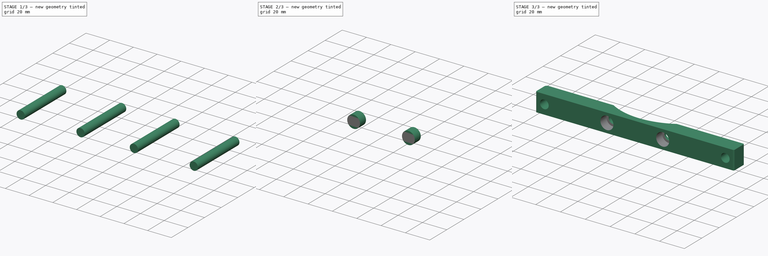
[diagram: build sequence overview — one tinted view per stage of 3, left to right]
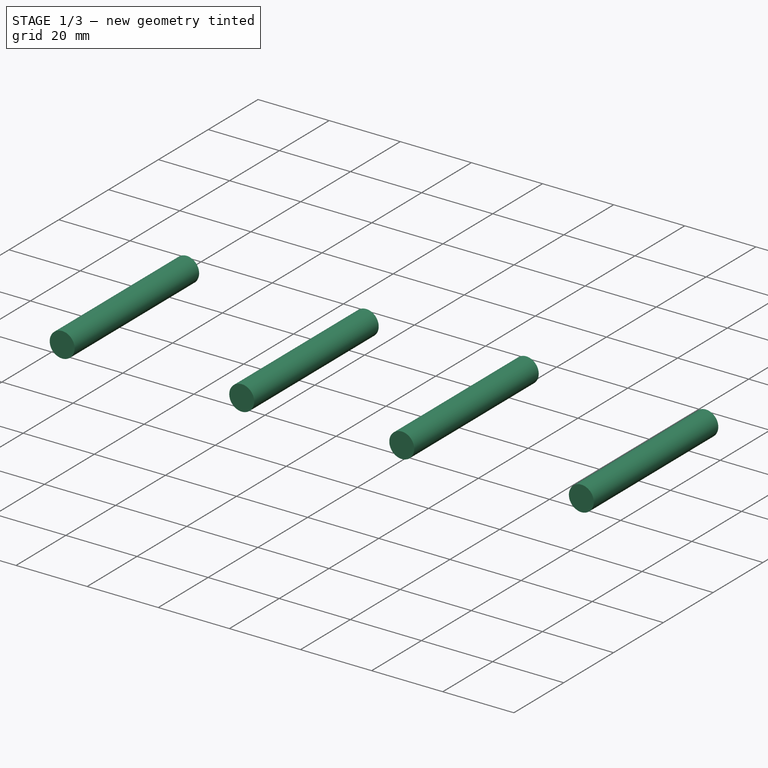
[diagram: stage 1 of 3 — iso view after this stage's code; geometry added in this stage tinted green]
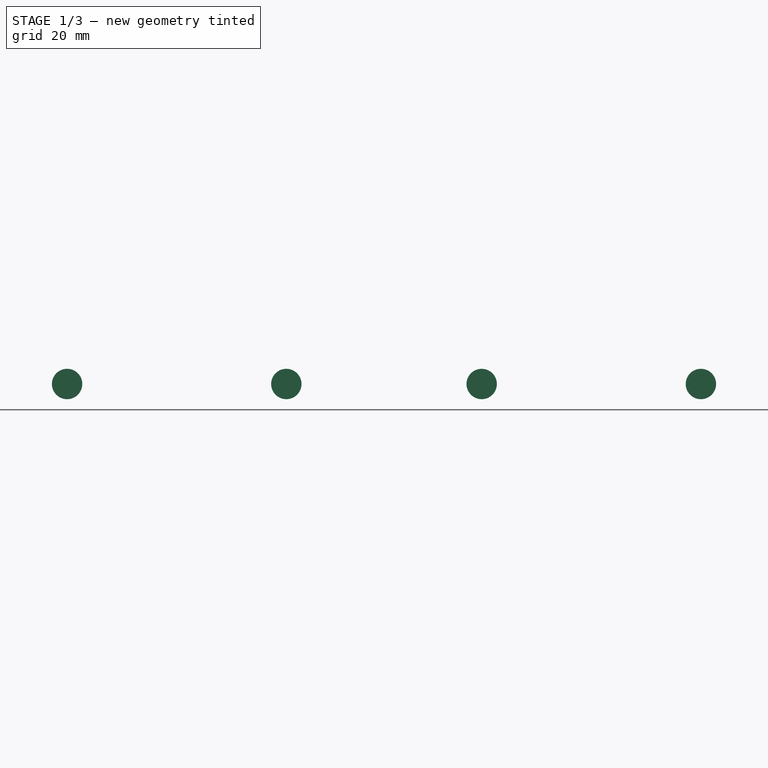
[diagram: stage 1 of 3 — front view after this stage's code; geometry added in this stage tinted green]
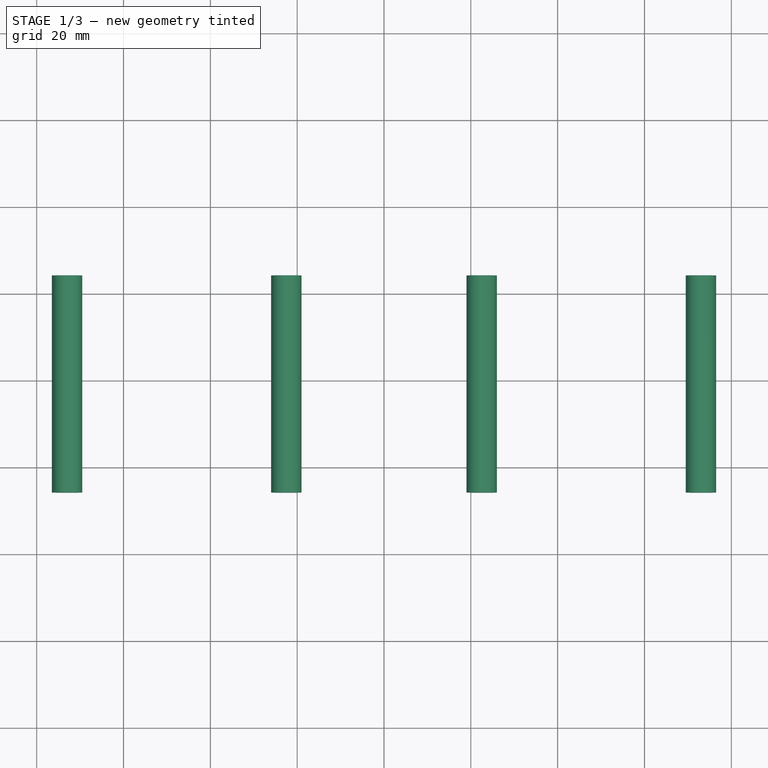
[diagram: stage 1 of 3 — top view after this stage's code; geometry added in this stage tinted green]
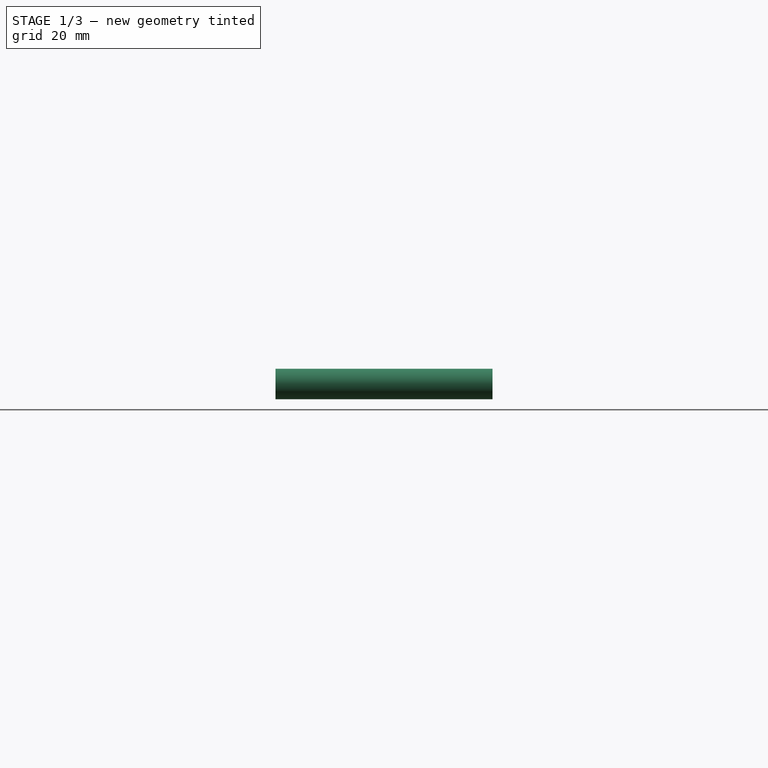
[diagram: stage 1 of 3 — right view after this stage's code; geometry added in this stage tinted green]
FCSTD DOCUMENT  (FreeCAD 0.21RUnknown)
Label: License Plate Holder
License: All rights reserved
LicenseURL: http://en.wikipedia.org/wiki/All_rights_reserved
objects: Sketcher::SketchObject×5, Part::Extrusion×3, Part::Cut×2, Image::ImagePlane×2, Part::Fillet×1
note: 11 computed .brp shape members not serialized (recipe doc carries the construction recipe); baked Part::Feature solids carry a one-line shape summary decoded from their .brp

FEATURE [Sketcher::SketchObject] Sketch003
  FullyConstrained = false
  sketch-geometry (9):
    g0: LineSegment StartX=-80 StartY=26.2201 StartZ=0 EndX=-25.5147 EndY=26.2201 EndZ=0
    g1: LineSegment StartX=80 StartY=26.2201 StartZ=0 EndX=80 EndY=14.2201 EndZ=0
    g2: LineSegment StartX=80 StartY=14.2201 StartZ=0 EndX=-80 EndY=14.2201 EndZ=0
    g3: LineSegment StartX=-80 StartY=14.2201 StartZ=0 EndX=-80 EndY=26.2201 EndZ=0
    g4: ArcOfCircle CenterX=0 CenterY=69.2201 CenterZ=0 NormalX=0 NormalY=0 NormalZ=1 AngleXU=0 Radius=50 StartAngle=4.17686 EndAngle=5.24792
    g5: LineSegment StartX=25.5147 StartY=26.2201 StartZ=0 EndX=80 EndY=26.2201 EndZ=0
    g6: LineSegment StartX=2.32574e-08 StartY=19.2201 StartZ=0 EndX=2.32574e-08 EndY=14.2201 EndZ=0
    g7: LineSegment StartX=2.32574e-08 StartY=19.2201 StartZ=0 EndX=-25.5147 EndY=19.2201 EndZ=0
    g8: LineSegment StartX=-25.5147 StartY=19.2201 StartZ=0 EndX=-25.5147 EndY=26.2201 EndZ=0
  constraints (26):
    c: Coincident(g5,g1)
    c: Coincident(g1,g2)
    c: Coincident(g2,g3)
    c: Coincident(g3,g0)
    c: Horizontal(g0)
    c: Horizontal(g2)
    c: Vertical(g1)
    c: Vertical(g3)
    c: PointOnObject(g4,g-2)
    c: Diameter(g4) = 100
    c: Coincident(g0,g4)
    c: Coincident(g5,g4)
    c: Horizontal(g5)
    c: Equal(g5,g0)
    c: Equal(g1,g3)
    c: PointOnObject(g6,g4)
    c: PointOnObject(g6,g2)
    c: Vertical(g6)
    c: Distance(g6) = 5
    c: Distance(g2) = 160
    c: Coincident(g6,g7)
    c: Horizontal(g7)
    c: Coincident(g7,g8)
    c: Coincident(g8,g0)
    c: Vertical(g8)
    c: Distance(g8) = 7
FEATURE [Part::Extrusion] Extrude003
  Base = -> Sketch003
  Dir = (0,0,1)
  DirMode = 2
  FaceMakerClass = Part::FaceMakerBullseye
  LengthFwd = 15
  LengthRev = 0
  Solid = true
  Symmetric = false
FEATURE [Sketcher::SketchObject] Sketch004
  ExternalGeometry = -> [Extrude003]
  FullyConstrained = true
  MapMode = 5
  Placement = pos=(0,14.2201,0) rot=(1,0,0;1.5708rad)
  Support = -> [Extrude003]
  sketch-geometry (13):
    g0: Circle CenterX=-73 CenterY=7.5 CenterZ=0 NormalX=0 NormalY=0 NormalZ=1 AngleXU=0 Radius=3.5
    g1: Circle CenterX=73 CenterY=7.5 CenterZ=0 NormalX=0 NormalY=0 NormalZ=1 AngleXU=0 Radius=3.5
    g2: LineSegment StartX=80 StartY=7.5 StartZ=0 EndX=-80 EndY=7.5 EndZ=0
    g3: LineSegment StartX=73 StartY=7.5 StartZ=0 EndX=0 EndY=0 EndZ=0
    g4: LineSegment StartX=0 StartY=0 StartZ=0 EndX=-73 EndY=7.5 EndZ=0
    g5: LineSegment StartX=-73 StartY=15 StartZ=0 EndX=-73 EndY=7.5 EndZ=0
    g6: LineSegment StartX=-73 StartY=7.5 StartZ=0 EndX=-73 EndY=0 EndZ=0
    g7: LineSegment StartX=-73 StartY=7.5 StartZ=0 EndX=73 EndY=7.5 EndZ=0
    g8: Circle CenterX=-22.5 CenterY=7.5 CenterZ=0 NormalX=0 NormalY=0 NormalZ=1 AngleXU=0 Radius=3.5
    g9: Circle CenterX=22.5 CenterY=7.5 CenterZ=0 NormalX=0 NormalY=0 NormalZ=1 AngleXU=0 Radius=3.5
    g10: LineSegment StartX=-22.5 StartY=7.5 StartZ=0 EndX=22.5 EndY=7.5 EndZ=0
    g11: LineSegment StartX=-22.5 StartY=7.5 StartZ=0 EndX=0 EndY=0 EndZ=0
    g12: LineSegment StartX=22.5 StartY=7.5 StartZ=0 EndX=0 EndY=0 EndZ=0
  constraints (34):
    c: Diameter(g1) = 7
    c: Equal(g1,g0)
    c: PointOnObject(g2,g-4)
    c: PointOnObject(g2,g-3)
    c: Horizontal(g2)
    c: PointOnObject(g0,g2)
    c: PointOnObject(g1,g2)
    c: Coincident(g3,g1)
    c: Coincident(g3,g-1)
    c: Coincident(g3,g4)
    c: Coincident(g4,g0)
    c: Equal(g4,g3)
    c: PointOnObject(g5,g-5)
    c: Coincident(g5,g0)
    c: Vertical(g5)
    c: Coincident(g6,g0)
    c: PointOnObject(g6,g-6)
    c: Vertical(g6)
    c: Equal(g6,g5)
    c: Coincident(g7,g1)
    c: Coincident(g7,g0)
    c: Distance(g7) = 146
    c: PointOnObject(g8,g2)
    c: PointOnObject(g9,g2)
    c: Equal(g9,g8)
    c: Diameter(g9) = 7
    c: Coincident(g10,g8)
    c: Coincident(g10,g9)
    c: Distance(g10) = 45
    c: Coincident(g11,g8)
    c: Coincident(g11,g3)
    c: Coincident(g12,g9)
    c: Coincident(g12,g3)
    c: Equal(g12,g11)
FEATURE [Part::Extrusion] Extrude004
  Base = -> Sketch004
  Dir = (0,-1,2e-16)
  DirMode = 2
  FaceMakerClass = Part::FaceMakerBullseye
  LengthFwd = 50
  LengthRev = 0
  Reversed = true
  Solid = true
  Symmetric = false
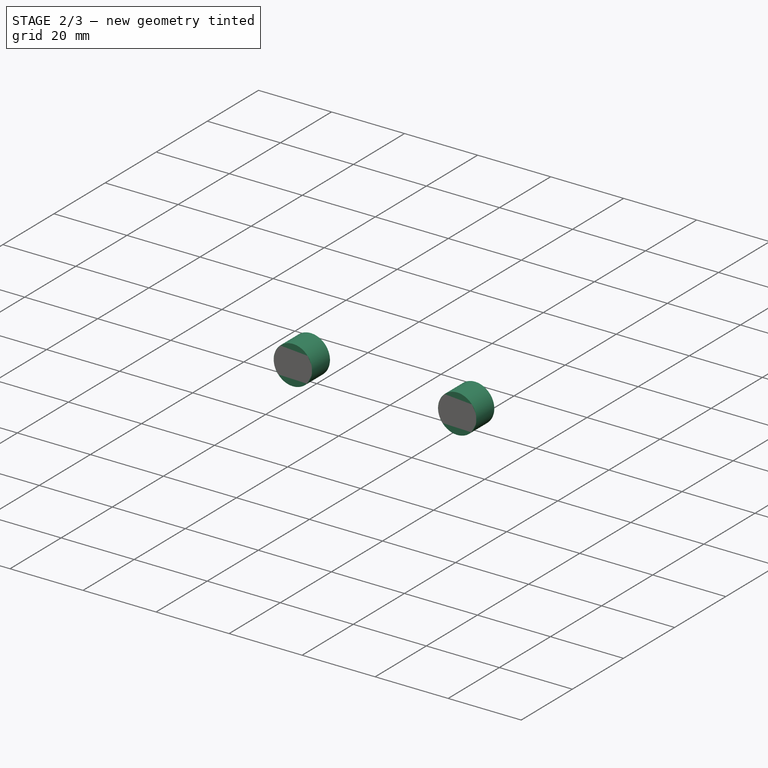
[diagram: stage 2 of 3 — iso view after this stage's code; geometry added in this stage tinted green]
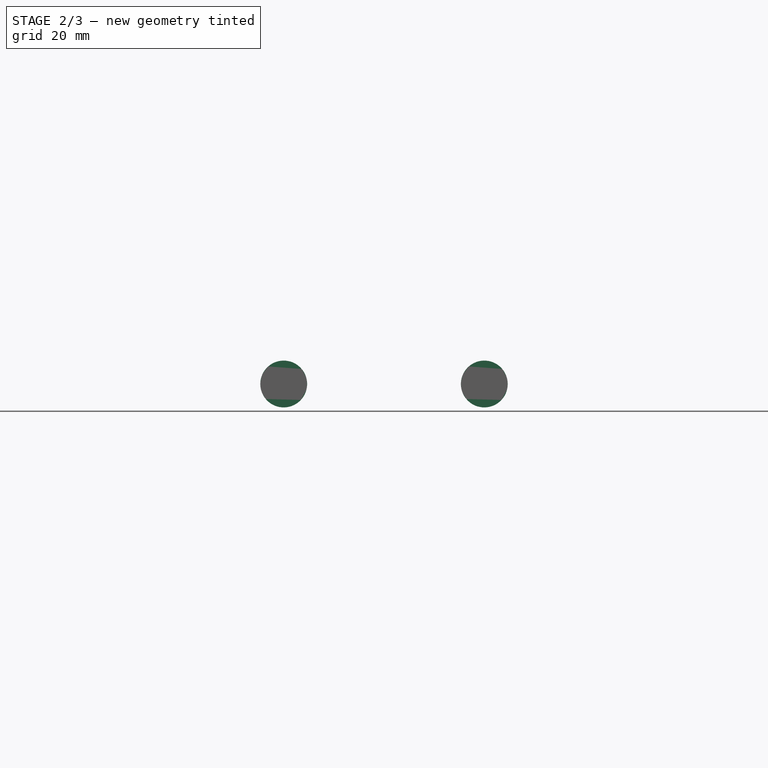
[diagram: stage 2 of 3 — front view after this stage's code; geometry added in this stage tinted green]
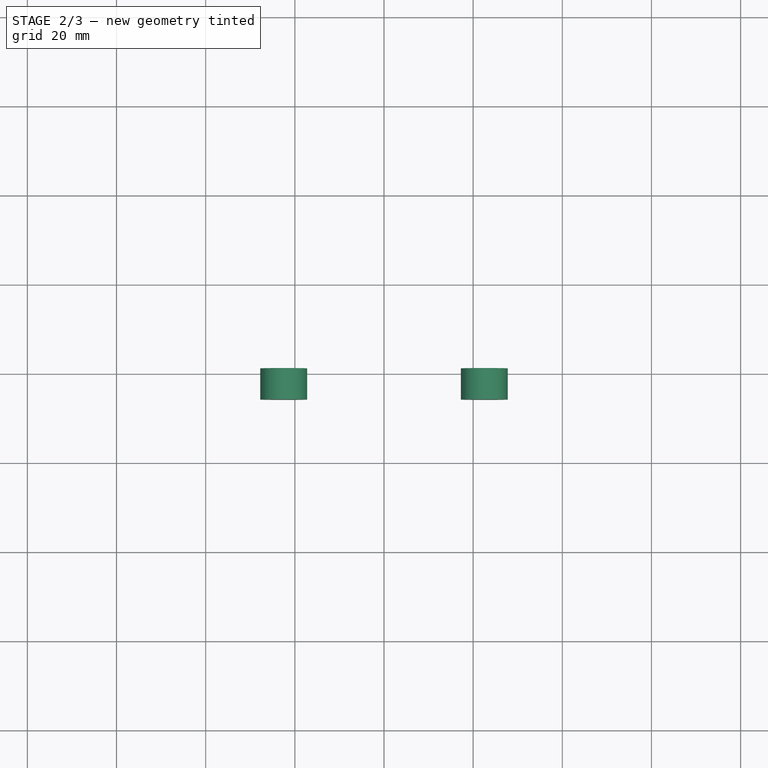
[diagram: stage 2 of 3 — top view after this stage's code; geometry added in this stage tinted green]
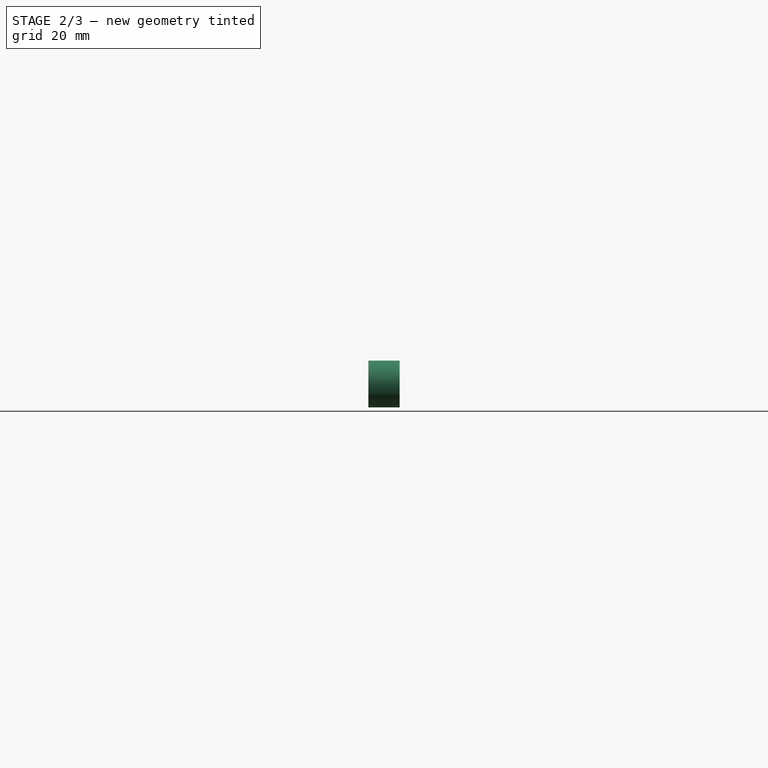
[diagram: stage 2 of 3 — right view after this stage's code; geometry added in this stage tinted green]
FEATURE [Part::Cut] Cut002
  Base = -> Extrude003
  Tool = -> Extrude004
FEATURE [Sketcher::SketchObject] Sketch005
  ExternalGeometry = -> [Cut002]
  FullyConstrained = true
  MapMode = 5
  Placement = pos=(0,14.2201,0) rot=(1,0,0;1.5708rad)
  Support = -> [Cut002]
  sketch-geometry (2):
    g0: Circle CenterX=-22.5 CenterY=7.5 CenterZ=0 NormalX=0 NormalY=0 NormalZ=1 AngleXU=0 Radius=5.25
    g1: Circle CenterX=22.5 CenterY=7.5 CenterZ=0 NormalX=0 NormalY=0 NormalZ=1 AngleXU=0 Radius=5.25
  constraints (4):
    c: Diameter(g0) = 10.5
    c: Equal(g0,g1)
    c: Coincident(g-3,g1)
    c: Coincident(g0,g-4)
FEATURE [Part::Extrusion] Extrude005
  Base = -> Sketch005
  Dir = (0,-1,2e-16)
  DirMode = 2
  FaceMakerClass = Part::FaceMakerBullseye
  LengthFwd = 7
  LengthRev = 0
  Reversed = true
  Solid = true
  Symmetric = false
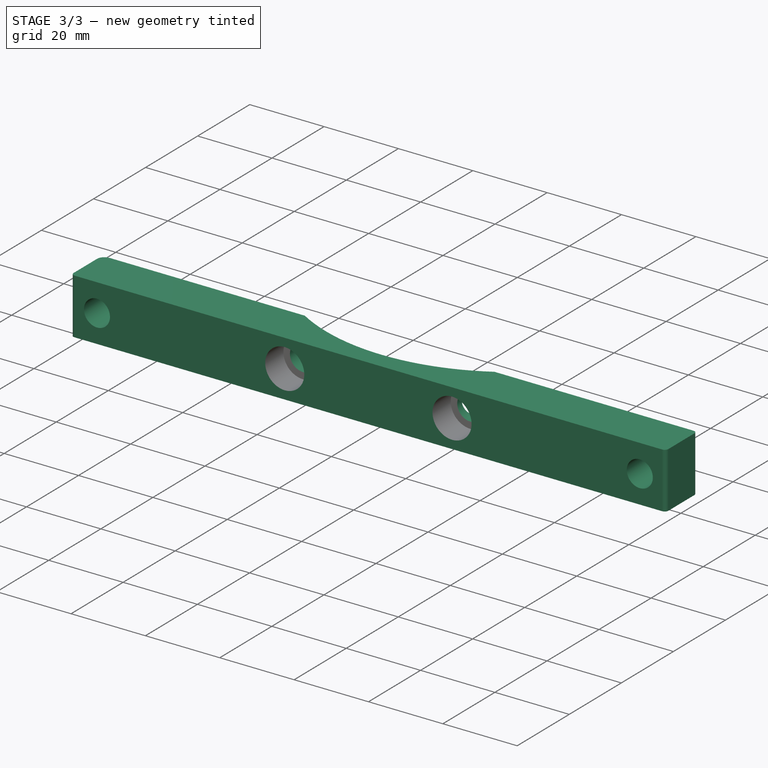
[diagram: stage 3 of 3 — iso view after this stage's code; geometry added in this stage tinted green]
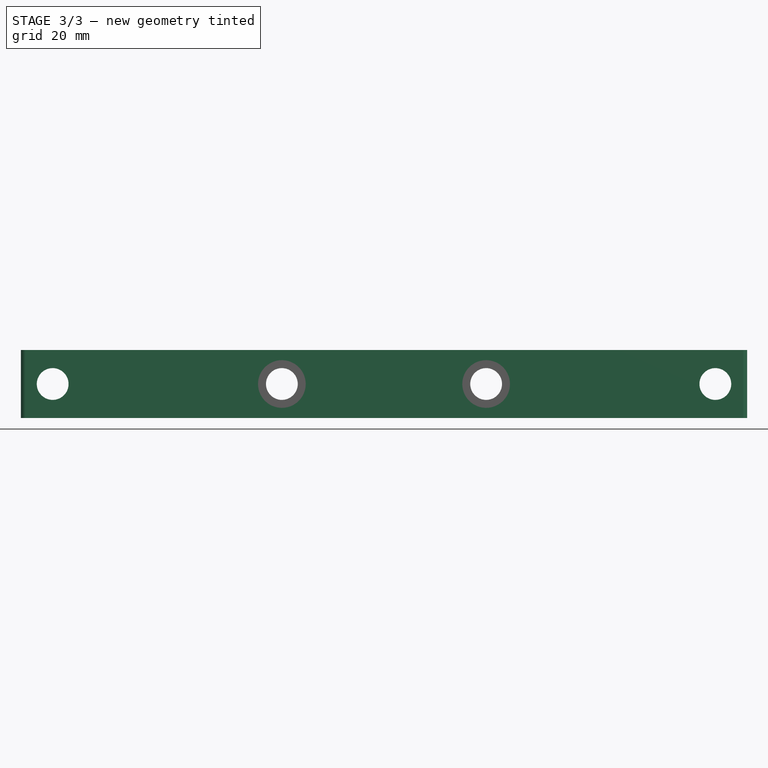
[diagram: stage 3 of 3 — front view after this stage's code; geometry added in this stage tinted green]
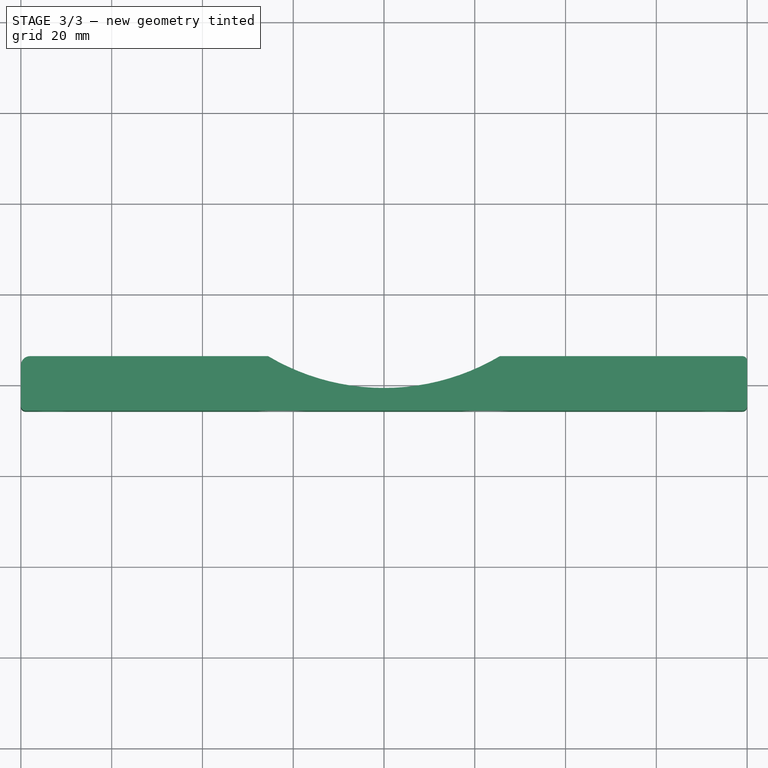
[diagram: stage 3 of 3 — top view after this stage's code; geometry added in this stage tinted green]
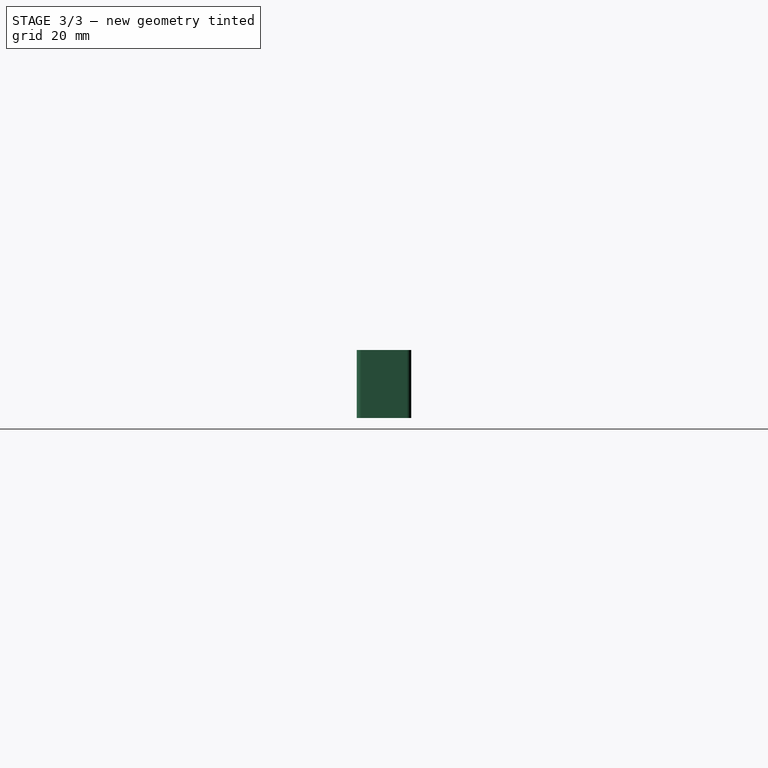
[diagram: stage 3 of 3 — right view after this stage's code; geometry added in this stage tinted green]
FEATURE [Part::Cut] Cut003
  Base = -> Cut002
  Tool = -> Extrude005
FEATURE [Image::ImagePlane] IMG_9254
  XSize = 191.096
  YSize = 254.795
FEATURE [Image::ImagePlane] IMG_9256
  XSize = 138.528
  YSize = 103.896
FEATURE [Sketcher::SketchObject] Sketch
  FullyConstrained = false
  MapMode = 2
  Support = -> [IMG_9254]
  sketch-geometry (3):
    g0: Circle CenterX=30.5267 CenterY=75.5247 CenterZ=0 NormalX=0 NormalY=0 NormalZ=1 AngleXU=0 Radius=3.5
    g1: Circle CenterX=32.5967 CenterY=-70.4607 CenterZ=0 NormalX=0 NormalY=0 NormalZ=1 AngleXU=0 Radius=3.5
    g2: LineSegment StartX=30.5267 StartY=75.5247 StartZ=0 EndX=32.5967 EndY=-70.4607 EndZ=0
  constraints (5):
    c: Diameter(g0) = 7
    c: Equal(g1,g0)
    c: Coincident(g2,g0)
    c: Coincident(g2,g1)
    c: Distance(g2) = 146
FEATURE [Sketcher::SketchObject] Sketch006
  FullyConstrained = false
  MapMode = 2
  Support = -> [IMG_9256]
  sketch-geometry (3):
    g0: Circle CenterX=22.0992 CenterY=5.25705 CenterZ=0 NormalX=0 NormalY=0 NormalZ=1 AngleXU=0 Radius=3
    g1: Circle CenterX=-21.7228 CenterY=9.21098 CenterZ=0 NormalX=0 NormalY=0 NormalZ=1 AngleXU=0 Radius=3
    g2: LineSegment StartX=-21.7228 StartY=9.21098 StartZ=0 EndX=22.0992 EndY=5.25705 EndZ=0
  constraints (5):
    c: Diameter(g0) = 6
    c: Equal(g1,g0)
    c: Coincident(g2,g1)
    c: Coincident(g2,g0)
    c: Distance(g2) = 44
FEATURE [Part::Fillet] Fillet
  Base = -> Cut003
  Edges = 4 edges: [Edge6 r=2,Edge25 r=1,Edge28 r=1,Edge32 r=1]
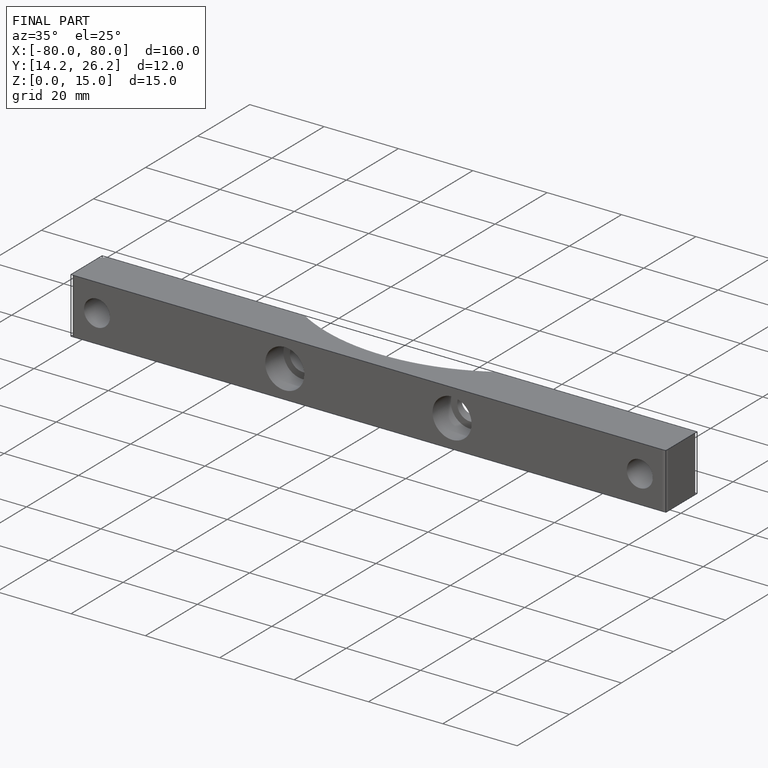
[diagram: finished part — iso view with bounding-box wireframe]
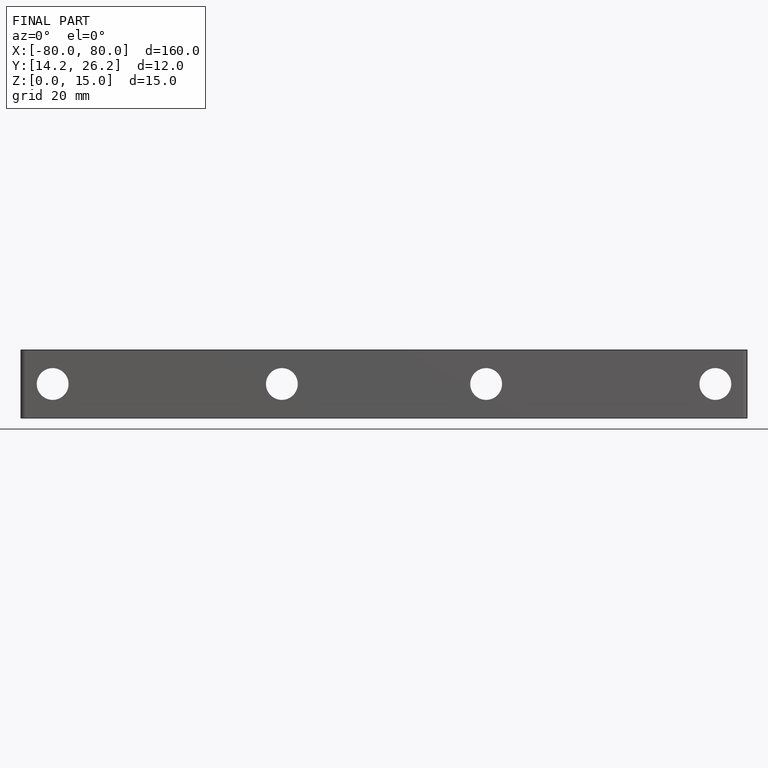
[diagram: finished part — front view with bounding-box wireframe]
